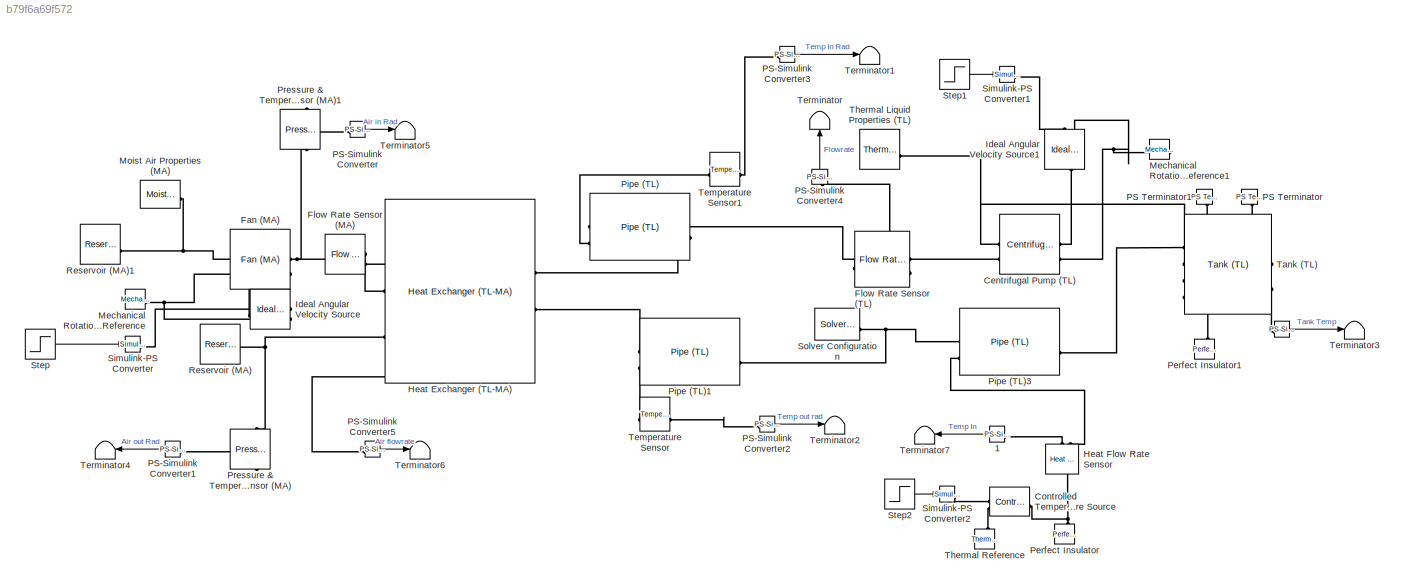
MODEL slx_b79f6a69f572
KIND model
CONFIG AbsTol = auto
CONFIG EnableMultiTasking = off
CONFIG FixedStep = auto
CONFIG MaxStep = auto
CONFIG MinStep = auto
CONFIG RelTol = 1e-3
CONFIG SampleTimeConstraint = Unconstrained
CONFIG SolverName = VariableStepAuto
CONFIG StartTime = 0.0
CONFIG StopTime = 2000
BLOCK [Reference]    REF=nesl_utility/PS-Simulink
Converter
  SourceBlock = nesl_utility/PS-Simulink\nConverter
  SourceType = PS-Simulink\nConverter
BLOCK [Reference]  1  REF=nesl_utility/PS-Simulink
Converter
  NameLocation = top
  SourceBlock = nesl_utility/PS-Simulink\nConverter
  SourceType = PS-Simulink\nConverter
BLOCK [Reference] Centrifugal Pump (TL)  REF=SimscapeFluids_lib/Thermal Liquid/Pumps & Motors/Centrifugal Pump
(TL)
  SourceBlock = SimscapeFluids_lib/Thermal Liquid/Pumps & Motors/Centrifugal Pump\n(TL)
  SourceType = Centrifugal Pump\n(TL)
BLOCK [Reference] Controlled Temperature Source  REF=fl_lib/Thermal/Thermal Sources/Controlled
Temperature Source
  SourceBlock = fl_lib/Thermal/Thermal Sources/Controlled\nTemperature Source
  SourceType = Controlled\nTemperature Source
BLOCK [Reference] Fan (MA)  REF=SimscapeFluids_lib/Moist Air/Turbomachinery/Fan (MA)
  SourceBlock = SimscapeFluids_lib/Moist Air/Turbomachinery/Fan (MA)
  SourceType = Fan (MA)
BLOCK [Reference] Flow Rate Sensor (MA)  REF=fl_lib/Moist Air/Sensors/Flow Rate Sensor
(MA)
  SourceBlock = fl_lib/Moist Air/Sensors/Flow Rate Sensor\n(MA)
  SourceType = Flow Rate Sensor\n(MA)
BLOCK [Reference] Flow Rate Sensor (TL)  REF=fl_lib/Thermal Liquid/Sensors/Flow Rate Sensor
(TL)
  NameLocation = top
  SourceBlock = fl_lib/Thermal Liquid/Sensors/Flow Rate Sensor\n(TL)
  SourceType = Flow Rate Sensor\n(TL)
BLOCK [Reference] Heat Exchanger (TL-MA)  REF=SimscapeFluids_lib/Fluid Network
Interfaces/Heat Exchangers/Heat Exchanger
(TL-MA)
  SourceBlock = SimscapeFluids_lib/Fluid Network\nInterfaces/Heat Exchangers/Heat Exchanger\n(TL-MA)
  SourceType = Heat Exchanger\n(TL-MA)
BLOCK [Reference] Heat Flow Rate Sensor  REF=fl_lib/Thermal/Thermal Sensors/Heat Flow Rate
Sensor
  NameLocation = right
  SourceBlock = fl_lib/Thermal/Thermal Sensors/Heat Flow Rate\nSensor
  SourceType = Heat Flow Rate\nSensor
BLOCK [Reference] Ideal Angular Velocity Source  REF=fl_lib/Mechanical/Mechanical Sources/Ideal Angular
Velocity Source
  NameLocation = right
  SourceBlock = fl_lib/Mechanical/Mechanical Sources/Ideal Angular\nVelocity Source
  SourceType = Ideal Angular\nVelocity Source
BLOCK [Reference] Ideal Angular Velocity Source1  REF=fl_lib/Mechanical/Mechanical Sources/Ideal Angular
Velocity Source
  NameLocation = right
  SourceBlock = fl_lib/Mechanical/Mechanical Sources/Ideal Angular\nVelocity Source
  SourceType = Ideal Angular\nVelocity Source
BLOCK [Reference] Mechanical Rotational Reference  REF=fl_lib/Mechanical/Rotational Elements/Mechanical
Rotational Reference
  SourceBlock = fl_lib/Mechanical/Rotational Elements/Mechanical\nRotational Reference
  SourceType = Mechanical\nRotational Reference
BLOCK [Reference] Mechanical Rotational Reference1  REF=fl_lib/Mechanical/Rotational Elements/Mechanical
Rotational Reference
  NameLocation = top
  SourceBlock = fl_lib/Mechanical/Rotational Elements/Mechanical\nRotational Reference
  SourceType = Mechanical\nRotational Reference
BLOCK [Reference] Moist Air Properties (MA)  REF=fl_lib/Moist Air/Utilities/Moist Air Properties
(MA)
  SourceBlock = fl_lib/Moist Air/Utilities/Moist Air Properties\n(MA)
  SourceType = Moist Air Properties\n(MA)
BLOCK [Reference] PS Terminator  REF=fl_lib/Physical Signals/Sinks/PS Terminator
  NameLocation = right
  SourceBlock = fl_lib/Physical Signals/Sinks/PS Terminator
  SourceType = PS Terminator
BLOCK [Reference] PS Terminator1  REF=fl_lib/Physical Signals/Sinks/PS Terminator
  NameLocation = right
  SourceBlock = fl_lib/Physical Signals/Sinks/PS Terminator
  SourceType = PS Terminator
BLOCK [Reference] PS-Simulink Converter  REF=nesl_utility/PS-Simulink
Converter
  SourceBlock = nesl_utility/PS-Simulink\nConverter
  SourceType = PS-Simulink\nConverter
BLOCK [Reference] PS-Simulink Converter1  REF=nesl_utility/PS-Simulink
Converter
  NameLocation = top
  SourceBlock = nesl_utility/PS-Simulink\nConverter
  SourceType = PS-Simulink\nConverter
BLOCK [Reference] PS-Simulink Converter2  REF=nesl_utility/PS-Simulink
Converter
  SourceBlock = nesl_utility/PS-Simulink\nConverter
  SourceType = PS-Simulink\nConverter
BLOCK [Reference] PS-Simulink Converter3  REF=nesl_utility/PS-Simulink
Converter
  SourceBlock = nesl_utility/PS-Simulink\nConverter
  SourceType = PS-Simulink\nConverter
BLOCK [Reference] PS-Simulink Converter4  REF=nesl_utility/PS-Simulink
Converter
  NameLocation = right
  SourceBlock = nesl_utility/PS-Simulink\nConverter
  SourceType = PS-Simulink\nConverter
BLOCK [Reference] PS-Simulink Converter5  REF=nesl_utility/PS-Simulink
Converter
  SourceBlock = nesl_utility/PS-Simulink\nConverter
  SourceType = PS-Simulink\nConverter
BLOCK [Reference] Perfect Insulator  REF=fl_lib/Thermal/Thermal Elements/Perfect Insulator
  NameLocation = right
  SourceBlock = fl_lib/Thermal/Thermal Elements/Perfect Insulator
  SourceType = Perfect Insulator
BLOCK [Reference] Perfect Insulator1  REF=fl_lib/Thermal/Thermal Elements/Perfect Insulator
  NameLocation = right
  SourceBlock = fl_lib/Thermal/Thermal Elements/Perfect Insulator
  SourceType = Perfect Insulator
BLOCK [Reference] Pipe (TL)  REF=SimscapeFluids_lib/Thermal Liquid/Pipes & Fittings/Pipe (TL)
  NameLocation = top
  SourceBlock = SimscapeFluids_lib/Thermal Liquid/Pipes & Fittings/Pipe (TL)
  SourceType = Pipe (TL)
BLOCK [Reference] Pipe (TL)1  REF=SimscapeFluids_lib/Thermal Liquid/Pipes & Fittings/Pipe (TL)
  SourceBlock = SimscapeFluids_lib/Thermal Liquid/Pipes & Fittings/Pipe (TL)
  SourceType = Pipe (TL)
BLOCK [Reference] Pipe (TL)3  REF=fl_lib/Thermal Liquid/Elements/Pipe (TL)
  SourceBlock = fl_lib/Thermal Liquid/Elements/Pipe (TL)
  SourceType = Pipe (TL)
BLOCK [Reference] Pressure & Temperature Sensor (MA)  REF=fl_lib/Moist Air/Sensors/Pressure &
Temperature Sensor
(MA)
  NameLocation = left
  SourceBlock = fl_lib/Moist Air/Sensors/Pressure &\nTemperature Sensor\n(MA)
  SourceType = Pressure &\nTemperature Sensor\n(MA)
BLOCK [Reference] Pressure & Temperature Sensor (MA)1  REF=fl_lib/Moist Air/Sensors/Pressure &
Temperature Sensor
(MA)
  NameLocation = right
  SourceBlock = fl_lib/Moist Air/Sensors/Pressure &\nTemperature Sensor\n(MA)
  SourceType = Pressure &\nTemperature Sensor\n(MA)
BLOCK [Reference] Reservoir (MA)  REF=fl_lib/Moist Air/Elements/Reservoir (MA)
  SourceBlock = fl_lib/Moist Air/Elements/Reservoir (MA)
  SourceType = Reservoir (MA)
BLOCK [Reference] Reservoir (MA)1  REF=fl_lib/Moist Air/Elements/Reservoir (MA)
  SourceBlock = fl_lib/Moist Air/Elements/Reservoir (MA)
  SourceType = Reservoir (MA)
BLOCK [Reference] Simulink-PS Converter  REF=nesl_utility/Simulink-PS
Converter
  SourceBlock = nesl_utility/Simulink-PS\nConverter
  SourceType = Simulink-PS\nConverter
BLOCK [Reference] Simulink-PS Converter1  REF=nesl_utility/Simulink-PS
Converter
  SourceBlock = nesl_utility/Simulink-PS\nConverter
  SourceType = Simulink-PS\nConverter
BLOCK [Reference] Simulink-PS Converter2  REF=nesl_utility/Simulink-PS
Converter
  SourceBlock = nesl_utility/Simulink-PS\nConverter
  SourceType = Simulink-PS\nConverter
BLOCK [Reference] Solver Configuration  REF=nesl_utility/Solver
Configuration
  SourceBlock = nesl_utility/Solver\nConfiguration
  SourceType = Solver\nConfiguration
BLOCK [Step] Step
  After = 160
  Before = 1
  SampleTime = 0
  Time = 60
BLOCK [Step] Step1
  After = 96.5
  SampleTime = 0
  Time = 60
BLOCK [Step] Step2
  After = 294
  Before = 330
  SampleTime = 0
  Time = 60
BLOCK [Reference] Tank (TL)  REF=SimscapeFluids_lib/Thermal Liquid/Tanks & Accumulators/Tank (TL)
  SourceBlock = SimscapeFluids_lib/Thermal Liquid/Tanks & Accumulators/Tank (TL)
  SourceType = Tank (TL)
BLOCK [Reference] Temperature Sensor  REF=fl_lib/Thermal/Thermal Sensors/Temperature Sensor
  SourceBlock = fl_lib/Thermal/Thermal Sensors/Temperature Sensor
  SourceType = Temperature Sensor
BLOCK [Reference] Temperature Sensor1  REF=fl_lib/Thermal/Thermal Sensors/Temperature Sensor
  SourceBlock = fl_lib/Thermal/Thermal Sensors/Temperature Sensor
  SourceType = Temperature Sensor
BLOCK [Terminator] Terminator
  NameLocation = right
BLOCK [Terminator] Terminator1
BLOCK [Terminator] Terminator2
BLOCK [Terminator] Terminator3
BLOCK [Terminator] Terminator4
  NameLocation = top
BLOCK [Terminator] Terminator5
BLOCK [Terminator] Terminator6
BLOCK [Terminator] Terminator7
  NameLocation = top
BLOCK [Reference] Thermal Liquid Properties (TL)  REF=SimscapeFluids_lib/Thermal Liquid/Utilities/Thermal Liquid
Properties (TL)
  SourceBlock = SimscapeFluids_lib/Thermal Liquid/Utilities/Thermal Liquid\nProperties (TL)
  SourceType = Thermal Liquid\nProperties (TL)
BLOCK [Reference] Thermal Reference  REF=fl_lib/Thermal/Thermal Elements/Thermal Reference
  NameLocation = right
  SourceBlock = fl_lib/Thermal/Thermal Elements/Thermal Reference
  SourceType = Thermal Reference
LINE  1:1 -> Terminator7:1
LINE  :1 -> Terminator3:1
LINE PS-Simulink Converter1:1 -> Terminator4:1
LINE PS-Simulink Converter2:1 -> Terminator2:1
LINE PS-Simulink Converter3:1 -> Terminator1:1
LINE PS-Simulink Converter4:1 -> Terminator:1
LINE PS-Simulink Converter5:1 -> Terminator6:1
LINE PS-Simulink Converter:1 -> Terminator5:1
LINE Step1:1 -> Simulink-PS Converter1:1
LINE Step2:1 -> Simulink-PS Converter2:1
LINE Step:1 -> Simulink-PS Converter:1
PLINE  1:LConn1 -- Heat Flow Rate Sensor:RConn1
PLINE  :LConn1 -- Tank (TL):RConn2
PNET net1: Centrifugal Pump (TL):LConn1 -- Tank (TL):LConn2 -- Thermal Liquid Properties (TL):RConn1
PLINE Centrifugal Pump (TL):LConn2 -- Flow Rate Sensor (TL):LConn1
PLINE Centrifugal Pump (TL):RConn1 -- Ideal Angular Velocity Source1:LConn1
PNET net2: Centrifugal Pump (TL):RConn2 -- Ideal Angular Velocity Source1:RConn2 -- Mechanical Rotational Reference1:LConn1
PNET net3: Controlled Temperature Source:LConn1 -- Heat Flow Rate Sensor:LConn1 -- Perfect Insulator:LConn1
PLINE Controlled Temperature Source:RConn1 -- Simulink-PS Converter2:RConn1
PLINE Controlled Temperature Source:RConn2 -- Thermal Reference:LConn1
PNET net4: Fan (MA):LConn1 -- Moist Air Properties (MA):RConn1 -- Reservoir (MA)1:LConn1
PNET net5: Fan (MA):LConn2 -- Ideal Angular Velocity Source:RConn2 -- Mechanical Rotational Reference:LConn1
PNET net6: Fan (MA):RConn1 -- Flow Rate Sensor (MA):LConn1 -- Pressure & Temperature Sensor (MA)1:LConn1
PLINE Fan (MA):RConn2 -- Ideal Angular Velocity Source:LConn1
PLINE Flow Rate Sensor (MA):RConn1 -- Heat Exchanger (TL-MA):RConn1
PLINE Flow Rate Sensor (MA):RConn2 -- PS-Simulink Converter5:LConn1
PLINE Flow Rate Sensor (TL):RConn1 -- Pipe (TL):LConn1
PLINE Flow Rate Sensor (TL):RConn2 -- PS-Simulink Converter4:LConn1
PLINE Heat Exchanger (TL-MA):LConn1 -- Pipe (TL):RConn1
PLINE Heat Exchanger (TL-MA):LConn2 -- Pipe (TL)1:LConn1
PNET net7: Heat Exchanger (TL-MA):RConn2 -- Pressure & Temperature Sensor (MA):LConn1 -- Reservoir (MA):LConn1
PLINE Heat Flow Rate Sensor:RConn2 -- Pipe (TL)3:LConn2
PLINE Ideal Angular Velocity Source1:RConn1 -- Simulink-PS Converter1:RConn1
PLINE Ideal Angular Velocity Source:RConn1 -- Simulink-PS Converter:RConn1
PLINE PS Terminator1:LConn1 -- Tank (TL):LConn3
PLINE PS Terminator:LConn1 -- Tank (TL):LConn4
PLINE PS-Simulink Converter1:LConn1 -- Pressure & Temperature Sensor (MA):RConn1
PLINE PS-Simulink Converter2:LConn1 -- Temperature Sensor:RConn1
PLINE PS-Simulink Converter3:LConn1 -- Temperature Sensor1:RConn1
PLINE PS-Simulink Converter:LConn1 -- Pressure & Temperature Sensor (MA)1:RConn1
PLINE Perfect Insulator1:LConn1 -- Tank (TL):RConn1
PLINE Pipe (TL)1:LConn2 -- Temperature Sensor:LConn1
PNET net8: Pipe (TL)1:RConn1 -- Pipe (TL)3:LConn1 -- Solver Configuration:RConn1
PLINE Pipe (TL)3:RConn1 -- Tank (TL):LConn1
PLINE Pipe (TL):LConn2 -- Temperature Sensor1:LConn1
note: PNET lines group multi-terminal physical nets as a canonical sorted terminal list (undirected conserving connections); 2-terminal nets keep the pairwise PLINE form
